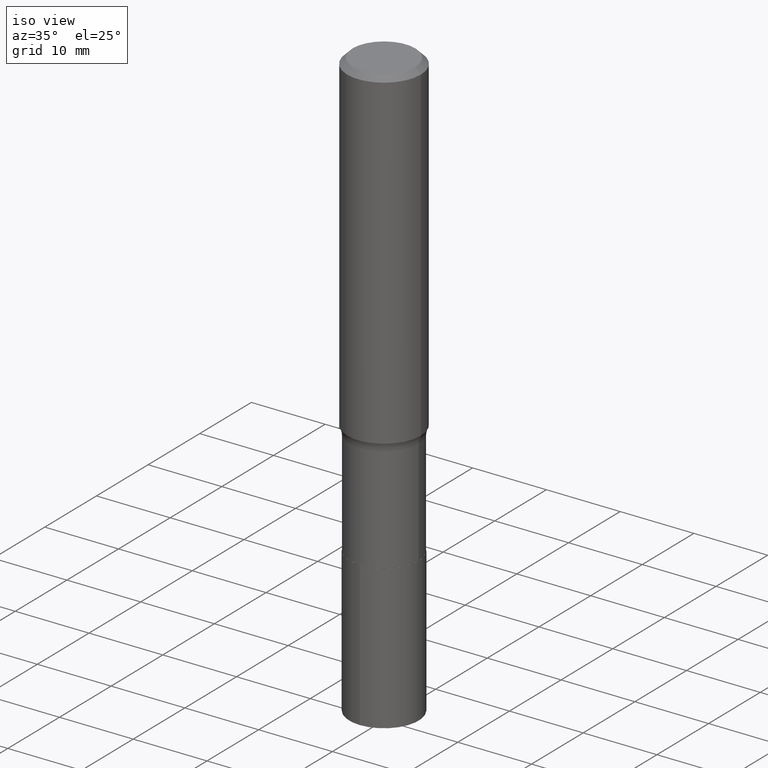
[diagram: clean part render]
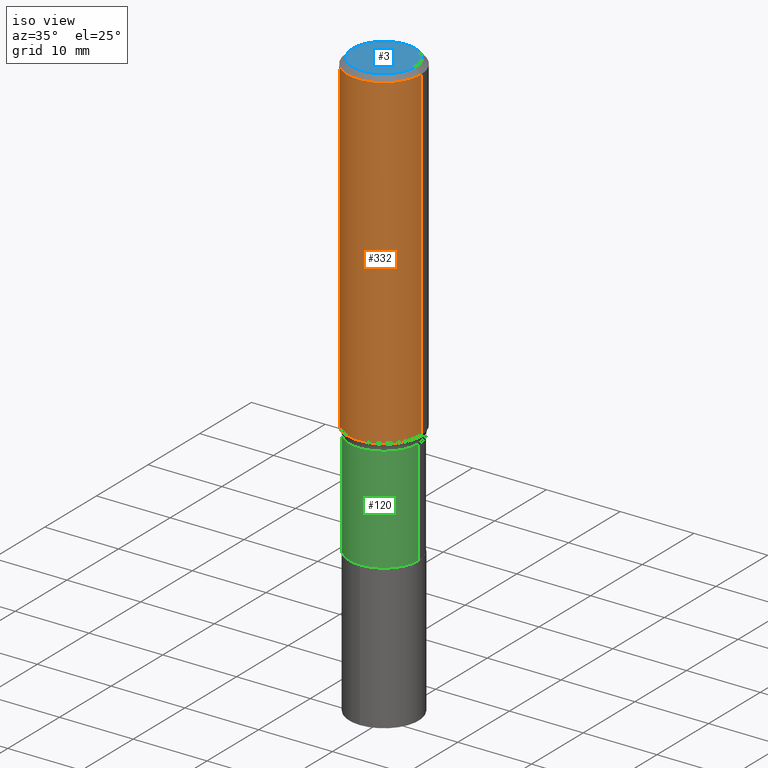
[diagram: same view with three faces highlighted in distinct colors, each labeled with its STEP entity id]
A machine part, iso view with three faces highlighted in distinct colors.
Their STEP definitions:

[orange] entity #332 — the highlighted cylindrical surface (partial cylindrical patch) has radius 5 mm, axis along (-0, 0, 1).
#2 = DIRECTION ( 'NONE',  ( -2.445468806185136877E-29, 3.491481338843145188E-15, 1.000000000000000000 ) ) ;
#11 = VERTEX_POINT ( 'NONE', #166 ) ;
#14 = ORIENTED_EDGE ( 'NONE', *, *, #19, .T. ) ;
#19 = EDGE_CURVE ( 'NONE', #11, #118, #278, .T. ) ;
#20 = VERTEX_POINT ( 'NONE', #396 ) ;
#53 = CIRCLE ( 'NONE', #277, 0.1968500000000002470 ) ;
#62 = AXIS2_PLACEMENT_3D ( 'NONE', #405, #222, #116 ) ;
#72 = VERTEX_POINT ( 'NONE', #415 ) ;
#95 = EDGE_CURVE ( 'NONE', #72, #20, #308, .T. ) ;
#116 = DIRECTION ( 'NONE',  ( 1.000000000000000000, -6.982962677686266711E-15, 4.876176775795935793E-29 ) ) ;
#118 = VERTEX_POINT ( 'NONE', #208 ) ;
#131 = DIRECTION ( 'NONE',  ( 1.000000000000000000, -6.982962677686265922E-15, 0.000000000000000000 ) ) ;
#162 = DIRECTION ( 'NONE',  ( -2.445468806185136597E-29, 3.491481338843145583E-15, 1.000000000000000000 ) ) ;
#164 = CARTESIAN_POINT ( 'NONE',  ( 7.220858017463209485E-31, -1.030947152326916609E-16, -0.02952750000000019595 ) ) ;
#166 = CARTESIAN_POINT ( 'NONE',  ( 0.1968500000000002470, -7.558993630916840498E-15, -1.771281822134387118 ) ) ;
#170 = CIRCLE ( 'NONE', #437, 0.1968500000000000250 ) ;
#191 = ORIENTED_EDGE ( 'NONE', *, *, #438, .F. ) ;
#202 = EDGE_LOOP ( 'NONE', ( #338, #349, #14, #191 ) ) ;
#208 = CARTESIAN_POINT ( 'NONE',  ( 0.1968500000000000250, -1.477690918335233294E-15, -0.02952750000000019595 ) ) ;
#220 = CYLINDRICAL_SURFACE ( 'NONE', #62, 0.1968500000000001082 ) ;
#222 = DIRECTION ( 'NONE',  ( -2.445468806185136597E-29, 3.491481338843145583E-15, 1.000000000000000000 ) ) ;
#223 = VECTOR ( 'NONE', #2, 39.37007874015748143 ) ;
#273 = CARTESIAN_POINT ( 'NONE',  ( 4.331614442992413389E-29, -6.184397427814296523E-15, -1.771281822134387118 ) ) ;
#277 = AXIS2_PLACEMENT_3D ( 'NONE', #273, #162, #293 ) ;
#278 = LINE ( 'NONE', #398, #368 ) ;
#293 = DIRECTION ( 'NONE',  ( 1.000000000000000000, -6.982962677686269866E-15, 0.000000000000000000 ) ) ;
#304 = FACE_OUTER_BOUND ( 'NONE', #202, .T. ) ;
#307 = DIRECTION ( 'NONE',  ( -2.445468806185136597E-29, 3.491481338843145583E-15, 1.000000000000000000 ) ) ;
#308 = LINE ( 'NONE', #344, #223 ) ;
#327 = EDGE_CURVE ( 'NONE', #72, #11, #53, .T. ) ;
#332 = ADVANCED_FACE ( 'NONE', ( #304 ), #220, .T. ) ;
#338 = ORIENTED_EDGE ( 'NONE', *, *, #95, .F. ) ;
#344 = CARTESIAN_POINT ( 'NONE',  ( -0.1968500000000001082, 1.398703375343757985E-15, -9.682923725166787881E-30 ) ) ;
#349 = ORIENTED_EDGE ( 'NONE', *, *, #327, .T. ) ;
#368 = VECTOR ( 'NONE', #465, 39.37007874015748143 ) ;
#396 = CARTESIAN_POINT ( 'NONE',  ( -0.1968500000000000250, -1.745042696179735528E-15, -0.02952750000000019595 ) ) ;
#398 = CARTESIAN_POINT ( 'NONE',  ( 0.1968500000000001082, -1.374596203102542397E-15, 9.598753983154305062E-30 ) ) ;
#405 = CARTESIAN_POINT ( 'NONE',  ( 0.000000000000000000, 0.000000000000000000, 0.000000000000000000 ) ) ;
#415 = CARTESIAN_POINT ( 'NONE',  ( -0.1968500000000002470, -4.785694052470537158E-15, -1.771281822134387118 ) ) ;
#437 = AXIS2_PLACEMENT_3D ( 'NONE', #164, #307, #131 ) ;
#438 = EDGE_CURVE ( 'NONE', #20, #118, #170, .T. ) ;
#465 = DIRECTION ( 'NONE',  ( -2.445468806185136877E-29, 3.491481338843145188E-15, 1.000000000000000000 ) ) ;

[blue] entity #3 — the highlighted planar face has unit normal (0, -0, -1).
#3 = ADVANCED_FACE ( 'NONE', ( #32 ), #459, .F. ) ;
#6 = EDGE_CURVE ( 'NONE', #347, #252, #101, .T. ) ;
#13 = EDGE_CURVE ( 'NONE', #252, #347, #451, .T. ) ;
#16 = ORIENTED_EDGE ( 'NONE', *, *, #6, .T. ) ;
#29 = DIRECTION ( 'NONE',  ( 2.438088387897960049E-29, -3.491481338843145188E-15, -1.000000000000000000 ) ) ;
#32 = FACE_OUTER_BOUND ( 'NONE', #50, .T. ) ;
#50 = EDGE_LOOP ( 'NONE', ( #341, #16 ) ) ;
#56 = DIRECTION ( 'NONE',  ( -2.445468806185136597E-29, 3.491481338843145583E-15, 1.000000000000000000 ) ) ;
#101 = CIRCLE ( 'NONE', #108, 0.1673224999999999851 ) ;
#104 = CARTESIAN_POINT ( 'NONE',  ( -1.001697619218021790E-46, 1.430158722866389718E-32, 4.096137381448108366E-18 ) ) ;
#108 = AXIS2_PLACEMENT_3D ( 'NONE', #171, #56, #352 ) ;
#113 = AXIS2_PLACEMENT_3D ( 'NONE', #173, #29, #167 ) ;
#129 = DIRECTION ( 'NONE',  ( -2.445468806185136597E-29, 3.491481338843145583E-15, 1.000000000000000000 ) ) ;
#167 = DIRECTION ( 'NONE',  ( -1.000000000000000000, 6.982962677686265922E-15, -4.876176775795935793E-29 ) ) ;
#171 = CARTESIAN_POINT ( 'NONE',  ( -1.001697619218021790E-46, 1.430158722866389718E-32, 4.096137381448108366E-18 ) ) ;
#173 = CARTESIAN_POINT ( 'NONE',  ( -5.008488096090108951E-47, 7.150793614331948590E-33, 2.048068690724054183E-18 ) ) ;
#201 = DIRECTION ( 'NONE',  ( 1.000000000000000000, -6.982962677686267499E-15, 4.876294436782262290E-29 ) ) ;
#252 = VERTEX_POINT ( 'NONE', #334 ) ;
#334 = CARTESIAN_POINT ( 'NONE',  ( -0.1673224999999999851, 1.219954130253505263E-15, 4.096137381439757534E-18 ) ) ;
#341 = ORIENTED_EDGE ( 'NONE', *, *, #13, .T. ) ;
#347 = VERTEX_POINT ( 'NONE', #414 ) ;
#352 = DIRECTION ( 'NONE',  ( 1.000000000000000000, -6.982962677686267499E-15, 4.876294436782262290E-29 ) ) ;
#414 = CARTESIAN_POINT ( 'NONE',  ( 0.1673224999999999851, -1.300749711163072397E-15, 4.096137381456741925E-18 ) ) ;
#421 = AXIS2_PLACEMENT_3D ( 'NONE', #104, #129, #201 ) ;
#451 = CIRCLE ( 'NONE', #421, 0.1673224999999999851 ) ;
#459 = PLANE ( 'NONE',  #113 ) ;

[green] entity #120 — the highlighted cylindrical surface (partial cylindrical patch) has radius 4.7003 mm, axis along (-0, 0, 1).
#26 = VECTOR ( 'NONE', #66, 39.37007874015748143 ) ;
#66 = DIRECTION ( 'NONE',  ( -2.445468806185136877E-29, 3.491481338843145188E-15, 1.000000000000000000 ) ) ;
#74 = CIRCLE ( 'NONE', #311, 0.1850499999999999923 ) ;
#93 = DIRECTION ( 'NONE',  ( -2.445468806185136597E-29, 3.491481338843145583E-15, 1.000000000000000000 ) ) ;
#114 = VECTOR ( 'NONE', #119, 39.37007874015748143 ) ;
#117 = EDGE_CURVE ( 'NONE', #216, #275, #435, .T. ) ;
#119 = DIRECTION ( 'NONE',  ( -2.445468806185136877E-29, 3.491481338843145188E-15, 1.000000000000000000 ) ) ;
#120 = ADVANCED_FACE ( 'NONE', ( #397 ), #134, .T. ) ;
#134 = CYLINDRICAL_SURFACE ( 'NONE', #150, 0.1850499999999999368 ) ;
#150 = AXIS2_PLACEMENT_3D ( 'NONE', #156, #93, #424 ) ;
#152 = LINE ( 'NONE', #192, #114 ) ;
#156 = CARTESIAN_POINT ( 'NONE',  ( 0.000000000000000000, 0.000000000000000000, 0.000000000000000000 ) ) ;
#184 = DIRECTION ( 'NONE',  ( 1.000000000000000000, -6.982962677686272233E-15, 0.000000000000000000 ) ) ;
#188 = CIRCLE ( 'NONE', #329, 0.1850499999999999090 ) ;
#192 = CARTESIAN_POINT ( 'NONE',  ( -0.1850499999999999368, 1.314859332524064945E-15, -9.102489384516700747E-30 ) ) ;
#216 = VERTEX_POINT ( 'NONE', #410 ) ;
#225 = VERTEX_POINT ( 'NONE', #371 ) ;
#251 = CARTESIAN_POINT ( 'NONE',  ( 0.1850499999999999368, -1.292197243505843287E-15, 9.023365123610376264E-30 ) ) ;
#261 = CARTESIAN_POINT ( 'NONE',  ( 5.813123899182689408E-29, -8.299600290564042799E-15, -2.377100000000000435 ) ) ;
#264 = ORIENTED_EDGE ( 'NONE', *, *, #274, .F. ) ;
#274 = EDGE_CURVE ( 'NONE', #225, #275, #188, .T. ) ;
#275 = VERTEX_POINT ( 'NONE', #417 ) ;
#299 = EDGE_CURVE ( 'NONE', #443, #225, #152, .T. ) ;
#303 = ORIENTED_EDGE ( 'NONE', *, *, #468, .T. ) ;
#311 = AXIS2_PLACEMENT_3D ( 'NONE', #261, #333, #184 ) ;
#329 = AXIS2_PLACEMENT_3D ( 'NONE', #407, #365, #450 ) ;
#333 = DIRECTION ( 'NONE',  ( -2.445468806185136597E-29, 3.491481338843145583E-15, 1.000000000000000000 ) ) ;
#365 = DIRECTION ( 'NONE',  ( -2.445468806185136597E-29, 3.491481338843145583E-15, 1.000000000000000000 ) ) ;
#371 = CARTESIAN_POINT ( 'NONE',  ( -0.1850499999999999090, -6.000143220486209610E-15, -1.813100000000000156 ) ) ;
#388 = ORIENTED_EDGE ( 'NONE', *, *, #299, .F. ) ;
#397 = FACE_OUTER_BOUND ( 'NONE', #461, .T. ) ;
#407 = CARTESIAN_POINT ( 'NONE',  ( 4.433879492494271668E-29, -6.330404815456507888E-15, -1.813100000000000156 ) ) ;
#410 = CARTESIAN_POINT ( 'NONE',  ( 0.1850499999999999923, -9.591797534069887861E-15, -2.377100000000000435 ) ) ;
#417 = CARTESIAN_POINT ( 'NONE',  ( 0.1850499999999999090, -7.622602058962351372E-15, -1.813100000000000156 ) ) ;
#419 = ORIENTED_EDGE ( 'NONE', *, *, #117, .T. ) ;
#424 = DIRECTION ( 'NONE',  ( 1.000000000000000000, -6.982962677686267499E-15, 4.876176775795935793E-29 ) ) ;
#435 = LINE ( 'NONE', #251, #26 ) ;
#443 = VERTEX_POINT ( 'NONE', #457 ) ;
#450 = DIRECTION ( 'NONE',  ( 1.000000000000000000, -6.982962677686270655E-15, 0.000000000000000000 ) ) ;
#457 = CARTESIAN_POINT ( 'NONE',  ( -0.1850499999999999923, -6.000143220486209610E-15, -2.377100000000000435 ) ) ;
#461 = EDGE_LOOP ( 'NONE', ( #388, #303, #419, #264 ) ) ;
#468 = EDGE_CURVE ( 'NONE', #443, #216, #74, .T. ) ;